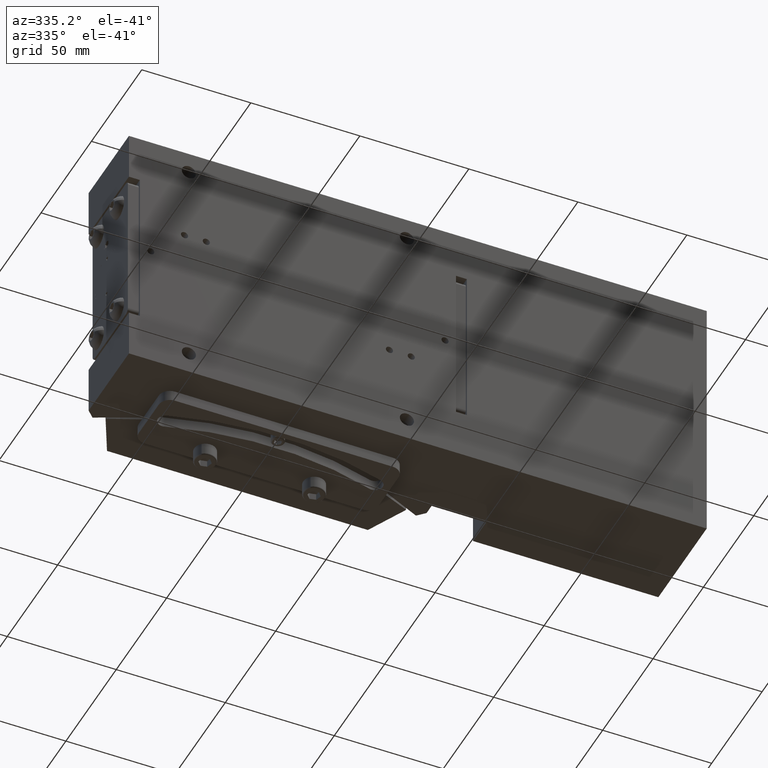
[diagram: clean part render]
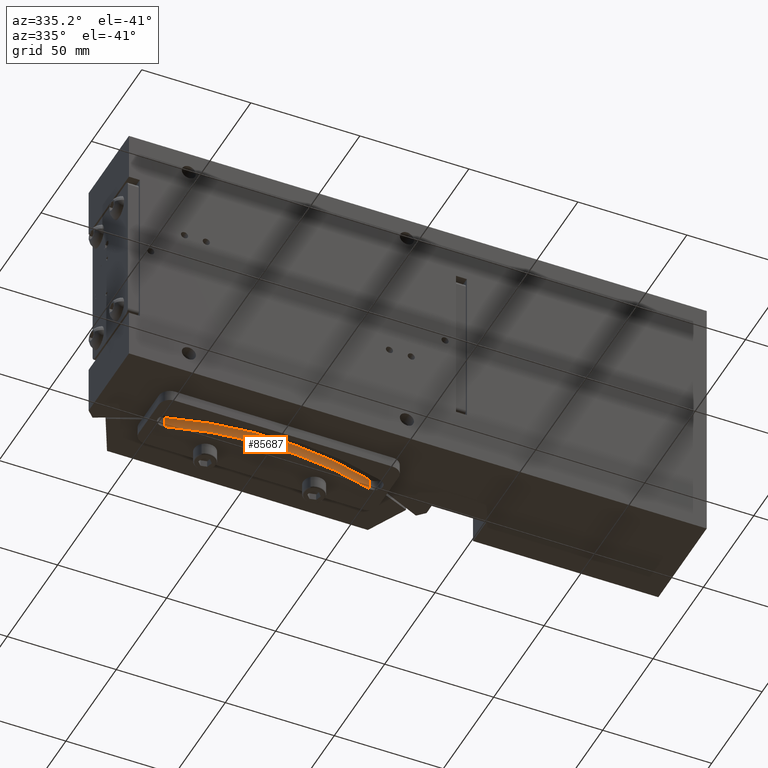
[diagram: same view with one face highlighted and labeled with its STEP entity id]
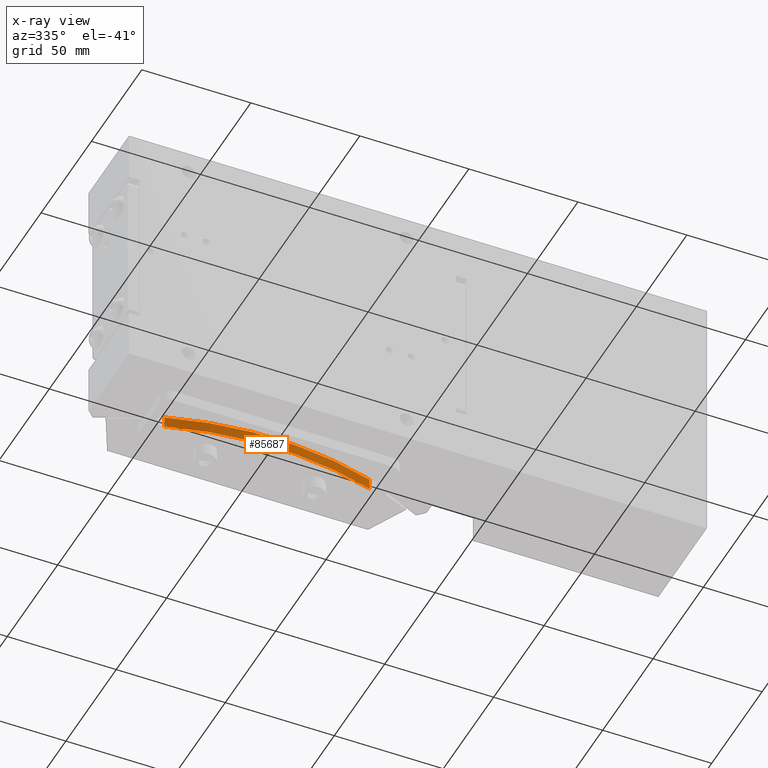
[diagram: x-ray of the same camera — body ghosted, the highlighted face saturated]
A machine part, auxiliary view. The second image highlights one B-rep face of the part: STEP entity #85687.
The next image is the same camera in x-ray: the body ghosted, the highlighted face saturated — about 0% of this face is hidden behind the body in this view.
In plain terms, the highlighted cylindrical surface (partial cylindrical patch) has radius 156.5 mm, axis along (-0, -0, 1).
Its self-contained STEP definition (entity closure, byte-faithful):
#207 = EDGE_CURVE ( 'NONE', #98984, #99969, #61035, .T. ) ;
#6377 = EDGE_LOOP ( 'NONE', ( #90173, #49903, #54971, #62885 ) ) ;
#9103 = DIRECTION ( 'NONE',  ( 0.9999999992164082530, -3.958766723999556091E-05, 0.000000000000000000 ) ) ;
#9332 = VERTEX_POINT ( 'NONE', #87394 ) ;
#9421 = AXIS2_PLACEMENT_3D ( 'NONE', #23385, #53893, #54898 ) ;
#18780 = EDGE_CURVE ( 'NONE', #99969, #68745, #84735, .T. ) ;
#21716 = DIRECTION ( 'NONE',  ( 3.075322940349819998E-23, -3.329426883923090276E-23, 1.000000000000000000 ) ) ;
#22387 = CYLINDRICAL_SURFACE ( 'NONE', #9421, 156.4999999999999716 ) ;
#23385 = CARTESIAN_POINT ( 'NONE',  ( -94.35429836251660163, 161.8938377033014717, -59.50124999999999886 ) ) ;
#27701 = EDGE_CURVE ( 'NONE', #9332, #68745, #59956, .T. ) ;
#28130 = CARTESIAN_POINT ( 'NONE',  ( -47.29974950165799896, 12.63527201442346026, -54.50124999999999886 ) ) ;
#44344 = EDGE_CURVE ( 'NONE', #98984, #9332, #85724, .T. ) ;
#44489 = DIRECTION ( 'NONE',  ( 3.075322940349819998E-23, -3.329426883923090276E-23, 1.000000000000000000 ) ) ;
#46182 = FACE_OUTER_BOUND ( 'NONE', #6377, .T. ) ;
#46488 = CARTESIAN_POINT ( 'NONE',  ( -94.35429836251660163, 161.8938377033014717, -59.50124999999999886 ) ) ;
#47871 = CARTESIAN_POINT ( 'NONE',  ( -94.35429836251660163, 161.8938377033014717, -54.50124999999999886 ) ) ;
#49156 = VECTOR ( 'NONE', #44489, 1000.000000000000000 ) ;
#49903 = ORIENTED_EDGE ( 'NONE', *, *, #27701, .F. ) ;
#50840 = CARTESIAN_POINT ( 'NONE',  ( -141.4206646727421912, 12.63899804189649956, -54.50124999999999886 ) ) ;
#53674 = CARTESIAN_POINT ( 'NONE',  ( -47.29974950165799896, 12.63527201442346026, -59.50124999999999886 ) ) ;
#53893 = DIRECTION ( 'NONE',  ( -1.317994238823077994E-27, -3.329305133844145323E-23, 1.000000000000000000 ) ) ;
#54898 = DIRECTION ( 'NONE',  ( 0.9999999992164082530, -3.958766723999556091E-05, 0.000000000000000000 ) ) ;
#54971 = ORIENTED_EDGE ( 'NONE', *, *, #44344, .F. ) ;
#59956 = LINE ( 'NONE', #83696, #85562 ) ;
#61035 = LINE ( 'NONE', #100270, #49156 ) ;
#62885 = ORIENTED_EDGE ( 'NONE', *, *, #207, .T. ) ;
#63875 = DIRECTION ( 'NONE',  ( 1.317994238823077994E-27, 3.329305133844145323E-23, -1.000000000000000000 ) ) ;
#68745 = VERTEX_POINT ( 'NONE', #50840 ) ;
#69740 = DIRECTION ( 'NONE',  ( 1.317994238823077994E-27, 3.329305133844145323E-23, -1.000000000000000000 ) ) ;
#70238 = DIRECTION ( 'NONE',  ( 0.9999999992164082530, -3.958766723999556091E-05, 0.000000000000000000 ) ) ;
#73156 = AXIS2_PLACEMENT_3D ( 'NONE', #47871, #63875, #9103 ) ;
#83696 = CARTESIAN_POINT ( 'NONE',  ( -141.4206646727421912, 12.63899804189649956, -59.50124999999999886 ) ) ;
#84735 = CIRCLE ( 'NONE', #73156, 156.4999999999999716 ) ;
#85562 = VECTOR ( 'NONE', #21716, 1000.000000000000000 ) ;
#85687 = ADVANCED_FACE ( 'NONE', ( #46182 ), #22387, .T. ) ;
#85724 = CIRCLE ( 'NONE', #102257, 156.4999999999999716 ) ;
#87394 = CARTESIAN_POINT ( 'NONE',  ( -141.4206646727421912, 12.63899804189649956, -59.50124999999999886 ) ) ;
#90173 = ORIENTED_EDGE ( 'NONE', *, *, #18780, .T. ) ;
#98984 = VERTEX_POINT ( 'NONE', #53674 ) ;
#99969 = VERTEX_POINT ( 'NONE', #28130 ) ;
#100270 = CARTESIAN_POINT ( 'NONE',  ( -47.29974950165799896, 12.63527201442346026, -59.50124999999999886 ) ) ;
#102257 = AXIS2_PLACEMENT_3D ( 'NONE', #46488, #69740, #70238 ) ;